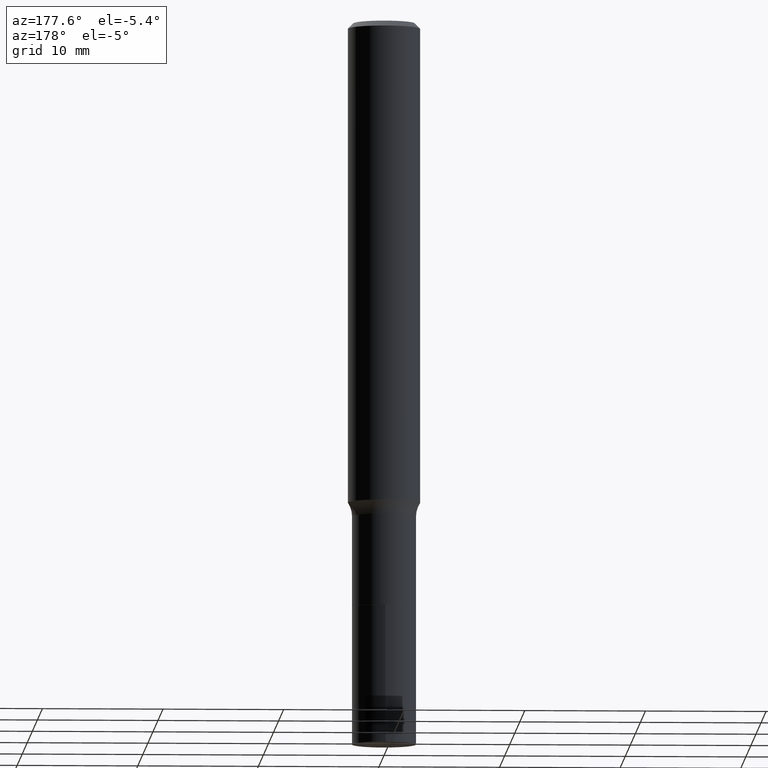
[diagram: clean part render]
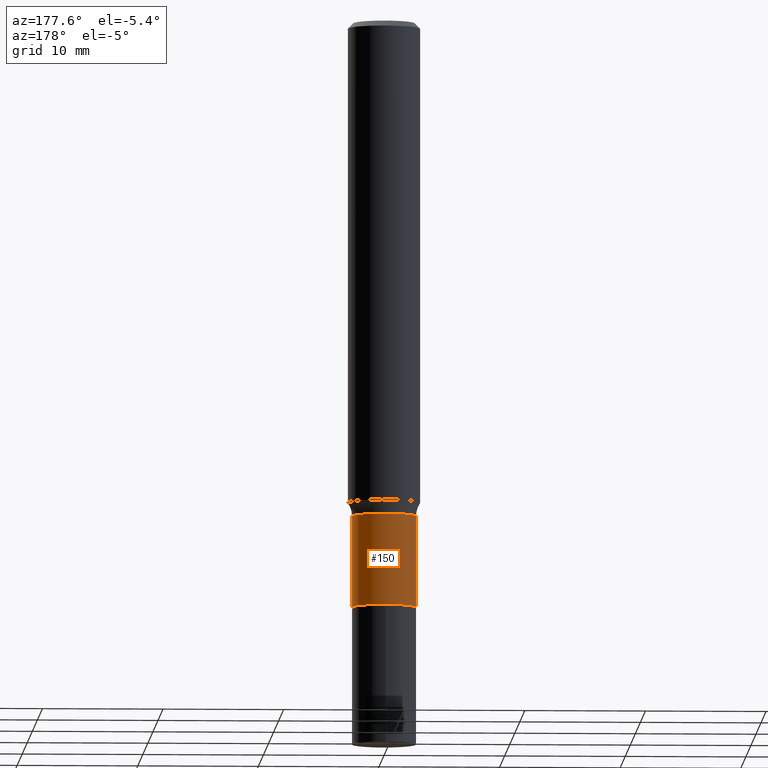
[diagram: same view with one face highlighted and labeled with its STEP entity id]
A machine part, auxiliary view. The second image highlights one B-rep face of the part: STEP entity #150.
In plain terms, the highlighted cylindrical surface (edge-blend (fillet) strip) has radius 2.6543 mm, axis along (-0, 0, 1).
Its self-contained STEP definition (entity closure, byte-faithful):
#1 = DIRECTION ( 'NONE',  ( -2.445468806185136597E-29, 3.491481338843145583E-15, 1.000000000000000000 ) ) ;
#10 = DIRECTION ( 'NONE',  ( -2.445468806185136877E-29, 3.491481338843145188E-15, 1.000000000000000000 ) ) ;
#12 = EDGE_LOOP ( 'NONE', ( #275, #68, #190, #373 ) ) ;
#35 = AXIS2_PLACEMENT_3D ( 'NONE', #75, #1, #401 ) ;
#44 = CARTESIAN_POINT ( 'NONE',  ( 0.000000000000000000, 0.000000000000000000, 0.000000000000000000 ) ) ;
#52 = VECTOR ( 'NONE', #10, 39.37007874015748143 ) ;
#61 = DIRECTION ( 'NONE',  ( -2.445468806185136597E-29, 3.491481338843145583E-15, 1.000000000000000000 ) ) ;
#68 = ORIENTED_EDGE ( 'NONE', *, *, #141, .T. ) ;
#70 = CARTESIAN_POINT ( 'NONE',  ( 0.1044999999999999540, -6.367763665782127275E-15, -1.614800000000000457 ) ) ;
#75 = CARTESIAN_POINT ( 'NONE',  ( 3.948943028227760097E-29, -5.638044065963912751E-15, -1.614800000000000457 ) ) ;
#80 = CARTESIAN_POINT ( 'NONE',  ( 0.1044999999999999679, -7.297195998182146228E-16, 5.095604730706752119E-30 ) ) ;
#92 = EDGE_CURVE ( 'NONE', #345, #395, #432, .T. ) ;
#111 = CYLINDRICAL_SURFACE ( 'NONE', #447, 0.1044999999999999679 ) ;
#117 = CARTESIAN_POINT ( 'NONE',  ( -0.1044999999999999540, -5.415583052515295399E-15, -1.614800000000000457 ) ) ;
#137 = CARTESIAN_POINT ( 'NONE',  ( -0.1044999999999999818, -5.415583052515295399E-15, -1.912700000000000289 ) ) ;
#141 = EDGE_CURVE ( 'NONE', #413, #174, #328, .T. ) ;
#147 = DIRECTION ( 'NONE',  ( 1.000000000000000000, -6.982962677686266711E-15, 4.876176775795936353E-29 ) ) ;
#150 = ADVANCED_FACE ( 'NONE', ( #285 ), #111, .T. ) ;
#168 = EDGE_CURVE ( 'NONE', #395, #174, #243, .T. ) ;
#174 = VERTEX_POINT ( 'NONE', #117 ) ;
#190 = ORIENTED_EDGE ( 'NONE', *, *, #168, .F. ) ;
#215 = CARTESIAN_POINT ( 'NONE',  ( -0.1044999999999999679, 7.425171588693044663E-16, -5.140287169316375031E-30 ) ) ;
#218 = DIRECTION ( 'NONE',  ( -2.445468806185136877E-29, 3.491481338843145188E-15, 1.000000000000000000 ) ) ;
#243 = CIRCLE ( 'NONE', #35, 0.1044999999999999540 ) ;
#246 = CARTESIAN_POINT ( 'NONE',  ( 4.677448185590311983E-29, -6.678156356805286387E-15, -1.912700000000000289 ) ) ;
#275 = ORIENTED_EDGE ( 'NONE', *, *, #466, .T. ) ;
#281 = DIRECTION ( 'NONE',  ( 1.000000000000000000, -6.982962677686262766E-15, 0.000000000000000000 ) ) ;
#285 = FACE_OUTER_BOUND ( 'NONE', #12, .T. ) ;
#315 = VECTOR ( 'NONE', #218, 39.37007874015748143 ) ;
#328 = LINE ( 'NONE', #215, #315 ) ;
#345 = VERTEX_POINT ( 'NONE', #394 ) ;
#369 = DIRECTION ( 'NONE',  ( -2.445468806185136597E-29, 3.491481338843145583E-15, 1.000000000000000000 ) ) ;
#373 = ORIENTED_EDGE ( 'NONE', *, *, #92, .F. ) ;
#394 = CARTESIAN_POINT ( 'NONE',  ( 0.1045000000000000095, -7.407875956623500911E-15, -1.912700000000000289 ) ) ;
#395 = VERTEX_POINT ( 'NONE', #70 ) ;
#401 = DIRECTION ( 'NONE',  ( 1.000000000000000000, -6.982962677686266711E-15, 0.000000000000000000 ) ) ;
#413 = VERTEX_POINT ( 'NONE', #137 ) ;
#432 = LINE ( 'NONE', #80, #52 ) ;
#447 = AXIS2_PLACEMENT_3D ( 'NONE', #44, #369, #147 ) ;
#457 = AXIS2_PLACEMENT_3D ( 'NONE', #246, #61, #281 ) ;
#464 = CIRCLE ( 'NONE', #457, 0.1045000000000000095 ) ;
#466 = EDGE_CURVE ( 'NONE', #345, #413, #464, .T. ) ;